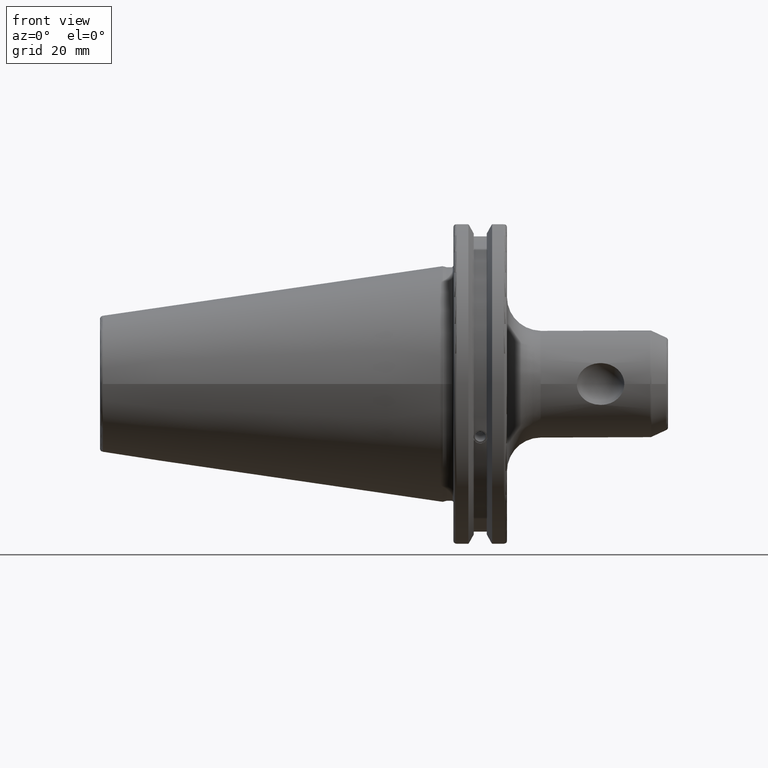
[diagram: clean part render]
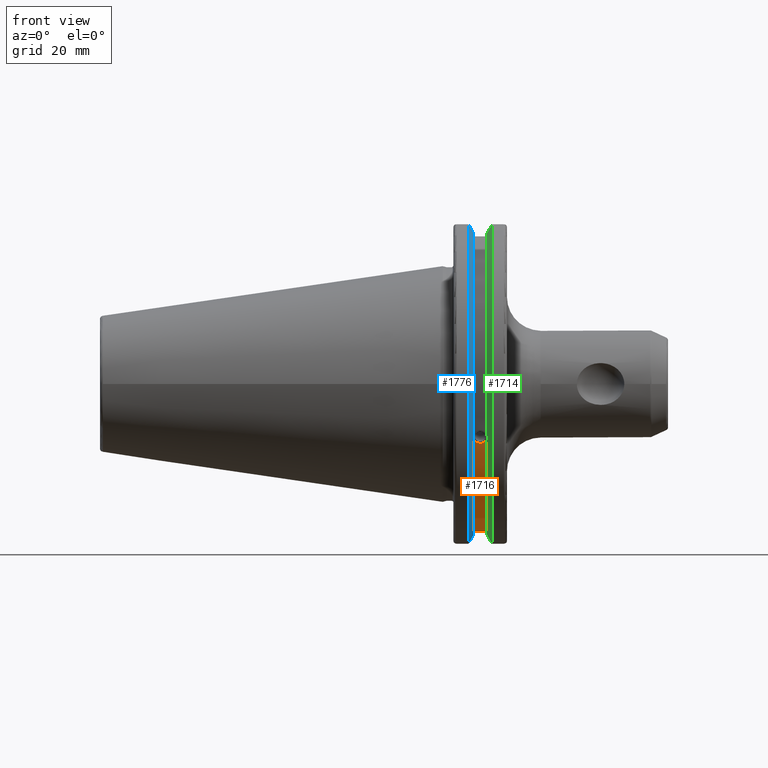
[diagram: same view with three faces highlighted in distinct colors, each labeled with its STEP entity id]
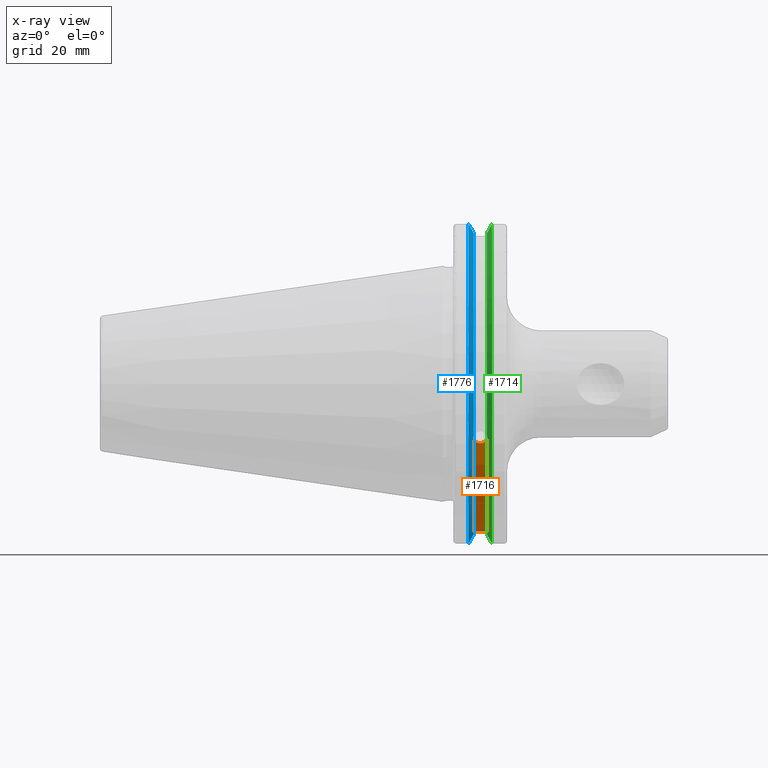
[diagram: x-ray of the same camera — body ghosted, the three highlighted faces saturated]
A machine part, front view with three faces highlighted in distinct colors.
The next image is the same camera in x-ray (body ghosted, the three faces saturated) — at least one of them is partly hidden behind the body in this view.
Their STEP definitions:

[orange] entity #1716 — the highlighted cylindrical surface (partial cylindrical patch) has radius 45.6435 mm, axis along (1, 0, 0).
#144=LINE('',#3053,#239);
#239=VECTOR('',#2186,10.);
#352=CIRCLE('',#1873,45.6435);
#353=CIRCLE('',#1875,45.6435);
#426=CYLINDRICAL_SURFACE('',#1874,45.6435);
#469=FACE_OUTER_BOUND('',#569,.T.);
#569=EDGE_LOOP('',(#1324,#1325,#1326,#1327));
#661=B_SPLINE_CURVE_WITH_KNOTS('',3,(#2977,#2978,#2979,#2980,#2981,#2982,
#2983,#2984,#2985,#2986,#2987,#2988,#2989,#2990,#2991),.UNSPECIFIED.,.F.,
 .F.,(4,2,2,3,2,2,4),(-0.231381164054419,-0.158232381135623,-0.0791161905678117,
0.,0.0791161905678116,0.158232381135623,0.231381164054566),
 .UNSPECIFIED.);
#753=VERTEX_POINT('',#2974);
#754=VERTEX_POINT('',#2976);
#770=VERTEX_POINT('',#3047);
#771=VERTEX_POINT('',#3051);
#960=EDGE_CURVE('',#754,#753,#661,.T.);
#980=EDGE_CURVE('',#754,#770,#352,.T.);
#982=EDGE_CURVE('',#753,#771,#353,.T.);
#983=EDGE_CURVE('',#771,#770,#144,.T.);
#1324=ORIENTED_EDGE('',*,*,#960,.T.);
#1325=ORIENTED_EDGE('',*,*,#982,.T.);
#1326=ORIENTED_EDGE('',*,*,#983,.T.);
#1327=ORIENTED_EDGE('',*,*,#980,.F.);
#1716=ADVANCED_FACE('',(#469),#426,.T.);
#1873=AXIS2_PLACEMENT_3D('',#3048,#2179,#2180);
#1874=AXIS2_PLACEMENT_3D('',#3050,#2182,#2183);
#1875=AXIS2_PLACEMENT_3D('',#3052,#2184,#2185);
#2179=DIRECTION('center_axis',(1.,0.,0.));
#2180=DIRECTION('ref_axis',(0.,0.,-1.));
#2182=DIRECTION('center_axis',(1.,0.,0.));
#2183=DIRECTION('ref_axis',(0.,1.,0.));
#2184=DIRECTION('center_axis',(1.,0.,0.));
#2185=DIRECTION('ref_axis',(0.,0.,-1.));
#2186=DIRECTION('',(1.,0.,0.));
#2974=CARTESIAN_POINT('',(9.2191,-42.5884454651059,-16.4180816515115));
#2976=CARTESIAN_POINT('',(13.0491,-42.5884454651059,-16.4180816515115));
#2977=CARTESIAN_POINT('Ctrl Pts',(13.0491,-42.5884454651059,-16.4180816515115));
#2978=CARTESIAN_POINT('Ctrl Pts',(12.9428782240206,-42.5035323832641,-16.6383458840848));
#2979=CARTESIAN_POINT('Ctrl Pts',(12.791391924423,-42.4245077186417,-16.8380515255915));
#2980=CARTESIAN_POINT('Ctrl Pts',(12.4325949659982,-42.2908173017388,-17.1712159412199));
#2981=CARTESIAN_POINT('Ctrl Pts',(12.1964796719457,-42.2294695309474,-17.3208689126276));
#2982=CARTESIAN_POINT('Ctrl Pts',(11.6790940832128,-42.1475978938586,-17.5191491957165));
#2983=CARTESIAN_POINT('Ctrl Pts',(11.397820635226,-42.1271980081205,-17.5678194501937));
#2984=CARTESIAN_POINT('Ctrl Pts',(11.1341,-42.1271980081205,-17.5678194501937));
#2985=CARTESIAN_POINT('Ctrl Pts',(10.870379364774,-42.1271980081205,-17.5678194501937));
#2986=CARTESIAN_POINT('Ctrl Pts',(10.5891059167872,-42.1475978938586,-17.5191491957165));
#2987=CARTESIAN_POINT('Ctrl Pts',(10.0717203280543,-42.2294695309474,-17.3208689126276));
#2988=CARTESIAN_POINT('Ctrl Pts',(9.83560503400179,-42.2908173017388,-17.1712159412199));
#2989=CARTESIAN_POINT('Ctrl Pts',(9.47680807557665,-42.4245077186418,-16.8380515255912));
#2990=CARTESIAN_POINT('Ctrl Pts',(9.32532177598175,-42.5035323832622,-16.6383458840897));
#2991=CARTESIAN_POINT('Ctrl Pts',(9.21909999999999,-42.5884454651059,-16.4180816515115));
#3047=CARTESIAN_POINT('',(13.0491,-12.95,-43.7678716897452));
#3048=CARTESIAN_POINT('Origin',(13.0491,0.,0.));
#3050=CARTESIAN_POINT('Origin',(11.1341,0.,0.));
#3051=CARTESIAN_POINT('',(9.2191,-12.95,-43.7678716897452));
#3052=CARTESIAN_POINT('Origin',(9.2191,0.,0.));
#3053=CARTESIAN_POINT('',(11.1341,-12.95,-43.7678716897452));

[blue] entity #1776 — the highlighted conical surface has half-angle 60 deg.
#25=(
BOUNDED_CURVE()
B_SPLINE_CURVE(2,(#3457,#3458,#3459),.UNSPECIFIED.,.F.,.F.)
B_SPLINE_CURVE_WITH_KNOTS((3,3),(0.,0.275823910674601),.UNSPECIFIED.)
CURVE()
GEOMETRIC_REPRESENTATION_ITEM()
RATIONAL_B_SPLINE_CURVE((1.,1.00038235573593,1.00012873636487))
REPRESENTATION_ITEM('')
);
#26=(
BOUNDED_CURVE()
B_SPLINE_CURVE(2,(#3469,#3470,#3471),.UNSPECIFIED.,.F.,.F.)
B_SPLINE_CURVE_WITH_KNOTS((3,3),(0.0558332664507492,0.331657177124507),
 .UNSPECIFIED.)
CURVE()
GEOMETRIC_REPRESENTATION_ITEM()
RATIONAL_B_SPLINE_CURVE((1.00012873636807,1.00038235574544,1.))
REPRESENTATION_ITEM('')
);
#27=(
BOUNDED_CURVE()
B_SPLINE_CURVE(2,(#3504,#3505,#3506),.UNSPECIFIED.,.F.,.F.)
B_SPLINE_CURVE_WITH_KNOTS((3,3),(0.,0.0648240472897372),.UNSPECIFIED.)
CURVE()
GEOMETRIC_REPRESENTATION_ITEM()
RATIONAL_B_SPLINE_CURVE((1.,1.00011477674836,1.00019140645948))
REPRESENTATION_ITEM('')
);
#28=(
BOUNDED_CURVE()
B_SPLINE_CURVE(2,(#3512,#3513,#3514),.UNSPECIFIED.,.F.,.F.)
B_SPLINE_CURVE_WITH_KNOTS((3,3),(0.325260944932348,0.390084992222201),
 .UNSPECIFIED.)
CURVE()
GEOMETRIC_REPRESENTATION_ITEM()
RATIONAL_B_SPLINE_CURVE((1.00019140645916,1.00011477674817,1.))
REPRESENTATION_ITEM('')
);
#114=CONICAL_SURFACE('',#1996,47.8172386482472,1.0471975511966);
#354=CIRCLE('',#1877,46.4219772964944);
#390=CIRCLE('',#1942,49.2125);
#414=CIRCLE('',#1997,46.4219772964944);
#529=FACE_OUTER_BOUND('',#639,.T.);
#639=EDGE_LOOP('',(#1670,#1671,#1672,#1673,#1674,#1675,#1676,#1677));
#660=B_SPLINE_CURVE_WITH_KNOTS('',3,(#2960,#2961,#2962,#2963,#2964,#2965,
#2966,#2967,#2968,#2969,#2970,#2971,#2972,#2973),.UNSPECIFIED.,.F.,.F.,
(4,2,2,2,2,2,4),(0.426712868358719,0.441644498666906,0.48031331322313,0.518982127779354,
0.557650942335578,0.596319756891801,0.611251387199988),.UNSPECIFIED.);
#751=VERTEX_POINT('',#2957);
#752=VERTEX_POINT('',#2959);
#772=VERTEX_POINT('',#3055);
#844=VERTEX_POINT('',#3454);
#845=VERTEX_POINT('',#3456);
#848=VERTEX_POINT('',#3468);
#852=VERTEX_POINT('',#3502);
#853=VERTEX_POINT('',#3508);
#958=EDGE_CURVE('',#752,#751,#660,.T.);
#984=EDGE_CURVE('',#752,#772,#354,.T.);
#1080=EDGE_CURVE('',#845,#844,#25,.T.);
#1086=EDGE_CURVE('',#848,#772,#26,.T.);
#1094=EDGE_CURVE('',#852,#844,#27,.T.);
#1096=EDGE_CURVE('',#852,#853,#390,.T.);
#1097=EDGE_CURVE('',#848,#853,#28,.T.);
#1147=EDGE_CURVE('',#845,#751,#414,.T.);
#1670=ORIENTED_EDGE('',*,*,#958,.T.);
#1671=ORIENTED_EDGE('',*,*,#1147,.F.);
#1672=ORIENTED_EDGE('',*,*,#1080,.T.);
#1673=ORIENTED_EDGE('',*,*,#1094,.F.);
#1674=ORIENTED_EDGE('',*,*,#1096,.T.);
#1675=ORIENTED_EDGE('',*,*,#1097,.F.);
#1676=ORIENTED_EDGE('',*,*,#1086,.T.);
#1677=ORIENTED_EDGE('',*,*,#984,.F.);
#1776=ADVANCED_FACE('',(#529),#114,.T.);
#1877=AXIS2_PLACEMENT_3D('',#3056,#2189,#2190);
#1942=AXIS2_PLACEMENT_3D('',#3510,#2363,#2364);
#1996=AXIS2_PLACEMENT_3D('',#3642,#2492,#2493);
#1997=AXIS2_PLACEMENT_3D('',#3643,#2494,#2495);
#2189=DIRECTION('center_axis',(1.,0.,0.));
#2190=DIRECTION('ref_axis',(0.,0.,-1.));
#2363=DIRECTION('center_axis',(1.,0.,0.));
#2364=DIRECTION('ref_axis',(0.,0.,-1.));
#2492=DIRECTION('center_axis',(-1.,0.,0.));
#2493=DIRECTION('ref_axis',(0.,-1.,-1.22464679914735E-16));
#2494=DIRECTION('center_axis',(1.,0.,0.));
#2495=DIRECTION('ref_axis',(0.,0.,-1.));
#2957=CARTESIAN_POINT('',(9.2191,-43.9096390749305,-15.0646464421033));
#2959=CARTESIAN_POINT('',(9.2191,-43.3201030900029,-16.684383248648));
#2960=CARTESIAN_POINT('Ctrl Pts',(9.21910000000001,-43.3201030900029,-16.6843832486479));
#2961=CARTESIAN_POINT('Ctrl Pts',(9.20211843903392,-43.3613106941341,-16.6592273018006));
#2962=CARTESIAN_POINT('Ctrl Pts',(9.18608675403322,-43.4012416983557,-16.6326763251437));
#2963=CARTESIAN_POINT('Ctrl Pts',(9.13238673845037,-43.5391037343221,-16.5325130832406));
#2964=CARTESIAN_POINT('Ctrl Pts',(9.09621610663556,-43.6406982153491,-16.441180795372));
#2965=CARTESIAN_POINT('Ctrl Pts',(9.04690868251975,-43.8110833825827,-16.2291323464527));
#2966=CARTESIAN_POINT('Ctrl Pts',(9.0341,-43.8794096049168,-16.10796730316));
#2967=CARTESIAN_POINT('Ctrl Pts',(9.0341,-43.9675796948952,-15.8657219718732));
#2968=CARTESIAN_POINT('Ctrl Pts',(9.04690868251975,-43.9931221605126,-15.7289849146254));
#2969=CARTESIAN_POINT('Ctrl Pts',(9.09621610663556,-43.9989016655819,-15.4570249042867));
#2970=CARTESIAN_POINT('Ctrl Pts',(9.13238673845037,-43.9797830409458,-15.3217566390708));
#2971=CARTESIAN_POINT('Ctrl Pts',(9.18608675403322,-43.9385582852181,-15.1564111356409));
#2972=CARTESIAN_POINT('Ctrl Pts',(9.20211843903392,-43.9250360001461,-15.1104047527575));
#2973=CARTESIAN_POINT('Ctrl Pts',(9.2191,-43.9096390749305,-15.0646464421033));
#3055=CARTESIAN_POINT('',(9.2191,-12.95,-44.5791147973604));
#3056=CARTESIAN_POINT('Origin',(9.2191,0.,0.));
#3454=CARTESIAN_POINT('',(7.88638960562424,-12.95,46.9780755322918));
#3456=CARTESIAN_POINT('',(9.2191,-12.95,44.5791147973604));
#3457=CARTESIAN_POINT('Ctrl Pts',(9.2191,-12.95,44.5791147973604));
#3458=CARTESIAN_POINT('Ctrl Pts',(8.57020449055857,-12.95,45.7494966802148));
#3459=CARTESIAN_POINT('Ctrl Pts',(7.88638960562424,-12.95,46.9780755322918));
#3468=CARTESIAN_POINT('',(7.88638960562425,-12.95,-46.9780755322918));
#3469=CARTESIAN_POINT('Ctrl Pts',(7.88638960562425,-12.95,-46.9780755322918));
#3470=CARTESIAN_POINT('Ctrl Pts',(8.57020449054166,-12.95,-45.7494966802452));
#3471=CARTESIAN_POINT('Ctrl Pts',(9.2191,-12.95,-44.5791147973604));
#3502=CARTESIAN_POINT('',(7.60799096595127,-13.4317035994433,47.3440544806494));
#3504=CARTESIAN_POINT('Ctrl Pts',(7.60799096595126,-13.4317035994433,47.3440544806494));
#3505=CARTESIAN_POINT('Ctrl Pts',(7.7482689666382,-13.1896660169966,47.1601640966265));
#3506=CARTESIAN_POINT('Ctrl Pts',(7.88638960562424,-12.95,46.9780755322918));
#3508=CARTESIAN_POINT('',(7.60799096595127,-13.4317035994433,-47.3440544806494));
#3510=CARTESIAN_POINT('Origin',(7.60799096595127,0.,0.));
#3512=CARTESIAN_POINT('Ctrl Pts',(7.88638960562425,-12.95,-46.9780755322918));
#3513=CARTESIAN_POINT('Ctrl Pts',(7.74826896663813,-13.1896660169967,-47.1601640966265));
#3514=CARTESIAN_POINT('Ctrl Pts',(7.60799096595127,-13.4317035994434,-47.3440544806494));
#3642=CARTESIAN_POINT('Origin',(8.41354548297563,0.,0.));
#3643=CARTESIAN_POINT('Origin',(9.2191,0.,0.));

[green] entity #1714 — the highlighted conical surface has half-angle 60 deg.
#15=(
BOUNDED_CURVE()
B_SPLINE_CURVE(2,(#3028,#3029,#3030),.UNSPECIFIED.,.F.,.F.)
B_SPLINE_CURVE_WITH_KNOTS((3,3),(0.,0.275823910673374),.UNSPECIFIED.)
CURVE()
GEOMETRIC_REPRESENTATION_ITEM()
RATIONAL_B_SPLINE_CURVE((1.,1.00038235574978,1.00012873636953))
REPRESENTATION_ITEM('')
);
#16=(
BOUNDED_CURVE()
B_SPLINE_CURVE(2,(#3032,#3033,#3034),.UNSPECIFIED.,.F.,.F.)
B_SPLINE_CURVE_WITH_KNOTS((3,3),(0.,0.0648240472896156),.UNSPECIFIED.)
CURVE()
GEOMETRIC_REPRESENTATION_ITEM()
RATIONAL_B_SPLINE_CURVE((1.,1.00011477674884,1.00019140646027))
REPRESENTATION_ITEM('')
);
#17=(
BOUNDED_CURVE()
B_SPLINE_CURVE(2,(#3038,#3039,#3040),.UNSPECIFIED.,.F.,.F.)
B_SPLINE_CURVE_WITH_KNOTS((3,3),(0.325260944932494,0.3900849922222),
 .UNSPECIFIED.)
CURVE()
GEOMETRIC_REPRESENTATION_ITEM()
RATIONAL_B_SPLINE_CURVE((1.00019140645961,1.00011477674844,1.))
REPRESENTATION_ITEM('')
);
#18=(
BOUNDED_CURVE()
B_SPLINE_CURVE(2,(#3042,#3043,#3044),.UNSPECIFIED.,.F.,.F.)
B_SPLINE_CURVE_WITH_KNOTS((3,3),(0.0558332664531015,0.331657177124503),
 .UNSPECIFIED.)
CURVE()
GEOMETRIC_REPRESENTATION_ITEM()
RATIONAL_B_SPLINE_CURVE((1.00012873636668,1.00038235574129,1.))
REPRESENTATION_ITEM('')
);
#104=CONICAL_SURFACE('',#1868,47.8172386482472,1.0471975511966);
#349=CIRCLE('',#1869,46.4219772964944);
#350=CIRCLE('',#1870,49.2125);
#351=CIRCLE('',#1871,46.4219772964944);
#467=FACE_OUTER_BOUND('',#567,.T.);
#567=EDGE_LOOP('',(#1311,#1312,#1313,#1314,#1315,#1316,#1317,#1318,#1319));
#658=B_SPLINE_CURVE_WITH_KNOTS('',3,(#2932,#2933,#2934,#2935,#2936,#2937,
#2938,#2939),.UNSPECIFIED.,.F.,.F.,(4,2,2,4),(0.42671286835872,0.441644498666905,
0.480313313223129,0.518982127779353),.UNSPECIFIED.);
#662=B_SPLINE_CURVE_WITH_KNOTS('',3,(#2994,#2995,#2996,#2997,#2998,#2999,
#3000,#3001),.UNSPECIFIED.,.F.,.F.,(4,2,2,4),(0.518982127779353,0.557650942335576,
0.5963197568918,0.611251387199985),.UNSPECIFIED.);
#747=VERTEX_POINT('',#2929);
#748=VERTEX_POINT('',#2931);
#755=VERTEX_POINT('',#2992);
#764=VERTEX_POINT('',#3025);
#765=VERTEX_POINT('',#3027);
#766=VERTEX_POINT('',#3031);
#767=VERTEX_POINT('',#3035);
#768=VERTEX_POINT('',#3037);
#769=VERTEX_POINT('',#3041);
#954=EDGE_CURVE('',#748,#747,#658,.T.);
#962=EDGE_CURVE('',#747,#755,#662,.T.);
#973=EDGE_CURVE('',#755,#764,#349,.T.);
#974=EDGE_CURVE('',#764,#765,#15,.T.);
#975=EDGE_CURVE('',#766,#765,#16,.T.);
#976=EDGE_CURVE('',#767,#766,#350,.T.);
#977=EDGE_CURVE('',#768,#767,#17,.T.);
#978=EDGE_CURVE('',#768,#769,#18,.T.);
#979=EDGE_CURVE('',#769,#748,#351,.T.);
#1311=ORIENTED_EDGE('',*,*,#954,.T.);
#1312=ORIENTED_EDGE('',*,*,#962,.T.);
#1313=ORIENTED_EDGE('',*,*,#973,.T.);
#1314=ORIENTED_EDGE('',*,*,#974,.T.);
#1315=ORIENTED_EDGE('',*,*,#975,.F.);
#1316=ORIENTED_EDGE('',*,*,#976,.F.);
#1317=ORIENTED_EDGE('',*,*,#977,.F.);
#1318=ORIENTED_EDGE('',*,*,#978,.T.);
#1319=ORIENTED_EDGE('',*,*,#979,.T.);
#1714=ADVANCED_FACE('',(#467),#104,.T.);
#1868=AXIS2_PLACEMENT_3D('',#3024,#2169,#2170);
#1869=AXIS2_PLACEMENT_3D('',#3026,#2171,#2172);
#1870=AXIS2_PLACEMENT_3D('',#3036,#2173,#2174);
#1871=AXIS2_PLACEMENT_3D('',#3045,#2175,#2176);
#2169=DIRECTION('center_axis',(1.,0.,0.));
#2170=DIRECTION('ref_axis',(0.,-1.,-1.22464679914735E-16));
#2171=DIRECTION('center_axis',(1.,0.,0.));
#2172=DIRECTION('ref_axis',(0.,0.,-1.));
#2173=DIRECTION('center_axis',(1.,0.,0.));
#2174=DIRECTION('ref_axis',(0.,0.,-1.));
#2175=DIRECTION('center_axis',(1.,0.,0.));
#2176=DIRECTION('ref_axis',(0.,0.,-1.));
#2929=CARTESIAN_POINT('',(13.2341,-43.923494649906,-15.9868446375166));
#2931=CARTESIAN_POINT('',(13.0491,-43.9096390749305,-15.0646464421033));
#2932=CARTESIAN_POINT('Ctrl Pts',(13.0491,-43.9096390749305,-15.0646464421033));
#2933=CARTESIAN_POINT('Ctrl Pts',(13.0660815609661,-43.9250360001461,-15.1104047527575));
#2934=CARTESIAN_POINT('Ctrl Pts',(13.0821132459668,-43.9385582852181,-15.1564111356409));
#2935=CARTESIAN_POINT('Ctrl Pts',(13.1358132615496,-43.9797830409459,-15.3217566390708));
#2936=CARTESIAN_POINT('Ctrl Pts',(13.1719838933644,-43.9989016655819,-15.4570249042868));
#2937=CARTESIAN_POINT('Ctrl Pts',(13.2212913174802,-43.9931221605126,-15.7289849146254));
#2938=CARTESIAN_POINT('Ctrl Pts',(13.2341,-43.9675796948952,-15.8657219718732));
#2939=CARTESIAN_POINT('Ctrl Pts',(13.2341,-43.923494649906,-15.9868446375166));
#2992=CARTESIAN_POINT('',(13.0491,-43.3201030900029,-16.6843832486479));
#2994=CARTESIAN_POINT('Ctrl Pts',(13.2341,-43.923494649906,-15.9868446375166));
#2995=CARTESIAN_POINT('Ctrl Pts',(13.2341,-43.8794096049169,-16.10796730316));
#2996=CARTESIAN_POINT('Ctrl Pts',(13.2212913174802,-43.8110833825827,-16.2291323464527));
#2997=CARTESIAN_POINT('Ctrl Pts',(13.1719838933644,-43.6406982153492,-16.441180795372));
#2998=CARTESIAN_POINT('Ctrl Pts',(13.1358132615496,-43.5391037343221,-16.5325130832406));
#2999=CARTESIAN_POINT('Ctrl Pts',(13.0821132459668,-43.4012416983557,-16.6326763251437));
#3000=CARTESIAN_POINT('Ctrl Pts',(13.0660815609661,-43.3613106941341,-16.6592273018006));
#3001=CARTESIAN_POINT('Ctrl Pts',(13.0491,-43.3201030900029,-16.6843832486479));
#3024=CARTESIAN_POINT('Origin',(13.8546545170244,0.,0.));
#3025=CARTESIAN_POINT('',(13.0491,-12.95,-44.5791147973604));
#3026=CARTESIAN_POINT('Origin',(13.0491,0.,0.));
#3027=CARTESIAN_POINT('',(14.3818103943757,-12.95,-46.9780755322917));
#3028=CARTESIAN_POINT('Ctrl Pts',(13.0491,-12.95,-44.5791147973604));
#3029=CARTESIAN_POINT('Ctrl Pts',(13.697995509466,-12.95,-45.749496680259));
#3030=CARTESIAN_POINT('Ctrl Pts',(14.3818103943757,-12.95,-46.9780755322917));
#3031=CARTESIAN_POINT('',(14.6602090340487,-13.4317035994433,-47.3440544806494));
#3032=CARTESIAN_POINT('Ctrl Pts',(14.6602090340487,-13.4317035994433,-47.3440544806494));
#3033=CARTESIAN_POINT('Ctrl Pts',(14.5199310333617,-13.1896660169964,-47.1601640966263));
#3034=CARTESIAN_POINT('Ctrl Pts',(14.3818103943757,-12.95,-46.9780755322917));
#3035=CARTESIAN_POINT('',(14.6602090340487,-13.4317035994433,47.3440544806494));
#3036=CARTESIAN_POINT('Origin',(14.6602090340487,0.,0.));
#3037=CARTESIAN_POINT('',(14.3818103943757,-12.95,46.9780755322918));
#3038=CARTESIAN_POINT('Ctrl Pts',(14.3818103943757,-12.95,46.9780755322918));
#3039=CARTESIAN_POINT('Ctrl Pts',(14.5199310333617,-13.1896660169966,47.1601640966264));
#3040=CARTESIAN_POINT('Ctrl Pts',(14.6602090340487,-13.4317035994433,47.3440544806494));
#3041=CARTESIAN_POINT('',(13.0491,-12.95,44.5791147973604));
#3042=CARTESIAN_POINT('Ctrl Pts',(14.3818103943757,-12.95,46.9780755322918));
#3043=CARTESIAN_POINT('Ctrl Pts',(13.6979955094846,-12.95,45.7494966802924));
#3044=CARTESIAN_POINT('Ctrl Pts',(13.0491,-12.95,44.5791147973604));
#3045=CARTESIAN_POINT('Origin',(13.0491,0.,0.));